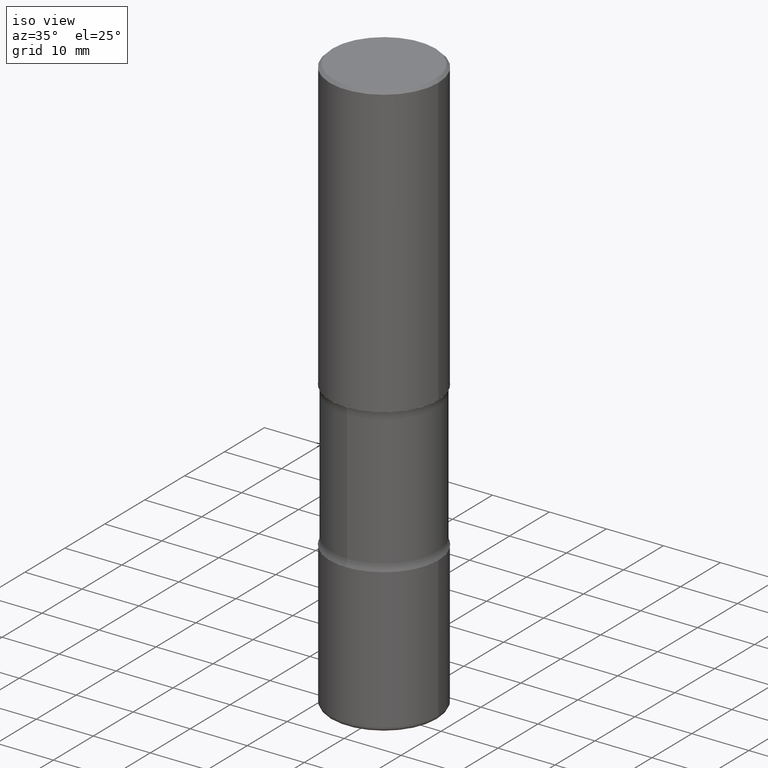
[diagram: clean part render]
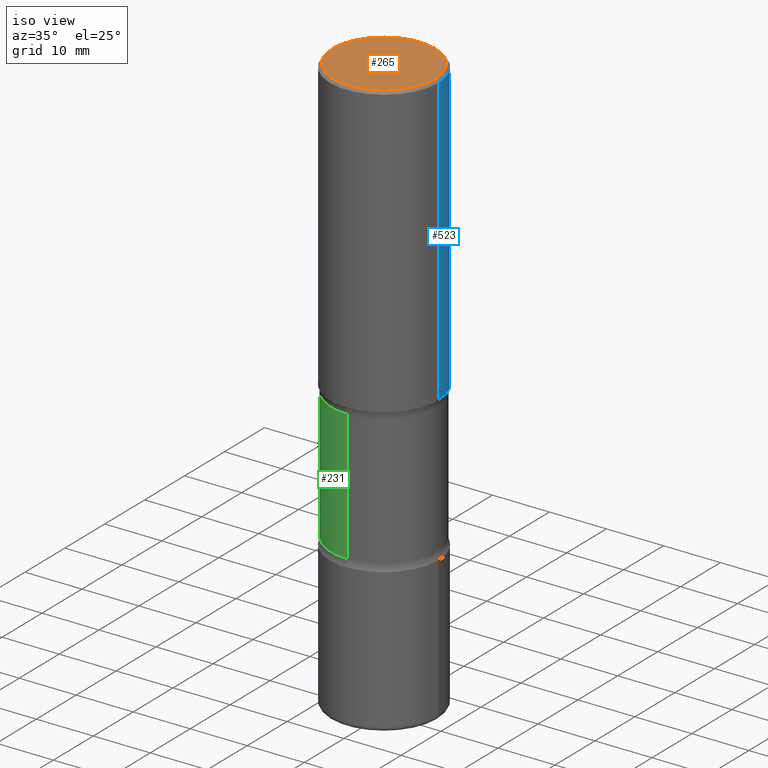
[diagram: same view with three faces highlighted in distinct colors, each labeled with its STEP entity id]
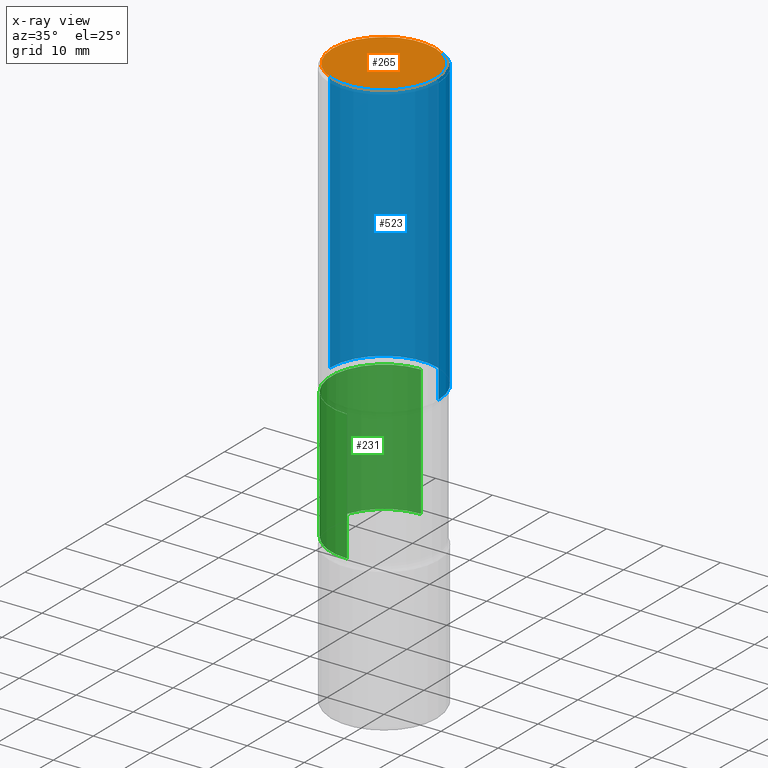
[diagram: x-ray of the same camera — body ghosted, the three highlighted faces saturated]
A machine part, iso view with three faces highlighted in distinct colors.
The next image is the same camera in x-ray (body ghosted, the three faces saturated) — at least one of them is partly hidden behind the body in this view.
Their STEP definitions:

[orange] entity #265 — the highlighted planar face has unit normal (0, -0, -1).
#23 = DIRECTION ( 'NONE',  ( 2.438088387897960049E-29, -3.491481338843145188E-15, -1.000000000000000000 ) ) ;
#26 = DIRECTION ( 'NONE',  ( 1.000000000000000000, -6.982962677686265922E-15, 4.876231632511976973E-29 ) ) ;
#27 = CIRCLE ( 'NONE', #90, 0.3550000000000008149 ) ;
#53 = CARTESIAN_POINT ( 'NONE',  ( -1.043851414335219820E-46, 1.490343170380447200E-32, 4.268512490100411279E-18 ) ) ;
#65 = AXIS2_PLACEMENT_3D ( 'NONE', #200, #23, #500 ) ;
#68 = CARTESIAN_POINT ( 'NONE',  ( -1.043851414335219820E-46, 1.490343170380447200E-32, 4.268512490100411279E-18 ) ) ;
#77 = FACE_OUTER_BOUND ( 'NONE', #559, .T. ) ;
#90 = AXIS2_PLACEMENT_3D ( 'NONE', #53, #440, #357 ) ;
#112 = ORIENTED_EDGE ( 'NONE', *, *, #165, .T. ) ;
#157 = PLANE ( 'NONE',  #65 ) ;
#165 = EDGE_CURVE ( 'NONE', #448, #234, #27, .T. ) ;
#180 = AXIS2_PLACEMENT_3D ( 'NONE', #68, #233, #26 ) ;
#200 = CARTESIAN_POINT ( 'NONE',  ( 2.478951750578629731E-15, 0.3550000000000008149, -1.237341619044269188E-15 ) ) ;
#233 = DIRECTION ( 'NONE',  ( -2.445468806185136597E-29, 3.491481338843145583E-15, 1.000000000000000000 ) ) ;
#234 = VERTEX_POINT ( 'NONE', #268 ) ;
#265 = ADVANCED_FACE ( 'NONE', ( #77 ), #157, .F. ) ;
#268 = CARTESIAN_POINT ( 'NONE',  ( 0.3550000000000008149, -2.538996582575045781E-15, 4.268512490117958041E-18 ) ) ;
#335 = CARTESIAN_POINT ( 'NONE',  ( -0.3550000000000008149, 2.513866563967061380E-15, 4.268512490082953109E-18 ) ) ;
#357 = DIRECTION ( 'NONE',  ( 1.000000000000000000, -6.982962677686265922E-15, 4.876231632511976973E-29 ) ) ;
#396 = EDGE_CURVE ( 'NONE', #234, #448, #420, .T. ) ;
#420 = CIRCLE ( 'NONE', #180, 0.3550000000000008149 ) ;
#440 = DIRECTION ( 'NONE',  ( -2.445468806185136597E-29, 3.491481338843145583E-15, 1.000000000000000000 ) ) ;
#448 = VERTEX_POINT ( 'NONE', #335 ) ;
#462 = ORIENTED_EDGE ( 'NONE', *, *, #396, .T. ) ;
#500 = DIRECTION ( 'NONE',  ( -1.000000000000000000, 6.982962677686265922E-15, -4.876176775795935793E-29 ) ) ;
#559 = EDGE_LOOP ( 'NONE', ( #112, #462 ) ) ;

[blue] entity #523 — the highlighted cylindrical surface (partial cylindrical patch) has radius 9.525 mm, axis along (-0, 0, 1).
#4 = CIRCLE ( 'NONE', #302, 0.3750000000000009437 ) ;
#13 = CARTESIAN_POINT ( 'NONE',  ( -0.3750000000000008327, 2.664535259100381613E-15, -1.844600658845593802E-29 ) ) ;
#33 = VERTEX_POINT ( 'NONE', #297 ) ;
#42 = EDGE_CURVE ( 'NONE', #33, #541, #473, .T. ) ;
#43 = ORIENTED_EDGE ( 'NONE', *, *, #42, .F. ) ;
#45 = VECTOR ( 'NONE', #300, 39.37007874015748143 ) ;
#67 = EDGE_LOOP ( 'NONE', ( #229, #72, #331, #43 ) ) ;
#72 = ORIENTED_EDGE ( 'NONE', *, *, #194, .T. ) ;
#79 = DIRECTION ( 'NONE',  ( 1.000000000000000000, -6.982962677686266711E-15, 4.876176775795935232E-29 ) ) ;
#88 = CARTESIAN_POINT ( 'NONE',  ( 0.3750000000000008327, -2.618611004132355933E-15, 1.828566290923479846E-29 ) ) ;
#110 = CARTESIAN_POINT ( 'NONE',  ( 4.890937612370273194E-29, -6.982962677686291165E-15, -2.000000000000000000 ) ) ;
#121 = VERTEX_POINT ( 'NONE', #139 ) ;
#138 = EDGE_CURVE ( 'NONE', #541, #454, #509, .T. ) ;
#139 = CARTESIAN_POINT ( 'NONE',  ( -0.3750000000000009437, -8.618608931311945336E-16, -2.000000000000000000 ) ) ;
#142 = DIRECTION ( 'NONE',  ( -2.445468806185136877E-29, 3.491481338843145188E-15, 1.000000000000000000 ) ) ;
#144 = DIRECTION ( 'NONE',  ( 1.000000000000000000, -6.982962677686266711E-15, 0.000000000000000000 ) ) ;
#194 = EDGE_CURVE ( 'NONE', #121, #454, #264, .T. ) ;
#229 = ORIENTED_EDGE ( 'NONE', *, *, #392, .T. ) ;
#257 = CARTESIAN_POINT ( 'NONE',  ( 0.3750000000000007772, -2.642516375941192367E-15, -0.02000000000000000042 ) ) ;
#264 = LINE ( 'NONE', #13, #427 ) ;
#278 = DIRECTION ( 'NONE',  ( -2.445468806185136597E-29, 3.491481338843145583E-15, 1.000000000000000000 ) ) ;
#297 = CARTESIAN_POINT ( 'NONE',  ( 0.3750000000000009437, -9.601573681818646704E-15, -2.000000000000000000 ) ) ;
#299 = FACE_OUTER_BOUND ( 'NONE', #67, .T. ) ;
#300 = DIRECTION ( 'NONE',  ( -2.445468806185136877E-29, 3.491481338843145188E-15, 1.000000000000000000 ) ) ;
#302 = AXIS2_PLACEMENT_3D ( 'NONE', #110, #278, #450 ) ;
#331 = ORIENTED_EDGE ( 'NONE', *, *, #138, .F. ) ;
#349 = CARTESIAN_POINT ( 'NONE',  ( 4.890937612370273159E-31, -6.982962677686291609E-17, -0.02000000000000000042 ) ) ;
#379 = DIRECTION ( 'NONE',  ( -2.445468806185136597E-29, 3.491481338843145583E-15, 1.000000000000000000 ) ) ;
#386 = CARTESIAN_POINT ( 'NONE',  ( -0.3750000000000007772, 2.548781377355492635E-15, -0.02000000000000000042 ) ) ;
#392 = EDGE_CURVE ( 'NONE', #33, #121, #4, .T. ) ;
#427 = VECTOR ( 'NONE', #142, 39.37007874015748143 ) ;
#445 = AXIS2_PLACEMENT_3D ( 'NONE', #349, #479, #144 ) ;
#450 = DIRECTION ( 'NONE',  ( 1.000000000000000000, -6.982962677686263555E-15, 0.000000000000000000 ) ) ;
#454 = VERTEX_POINT ( 'NONE', #386 ) ;
#473 = LINE ( 'NONE', #88, #45 ) ;
#477 = AXIS2_PLACEMENT_3D ( 'NONE', #508, #379, #79 ) ;
#479 = DIRECTION ( 'NONE',  ( -2.445468806185136597E-29, 3.491481338843145583E-15, 1.000000000000000000 ) ) ;
#508 = CARTESIAN_POINT ( 'NONE',  ( 0.000000000000000000, 0.000000000000000000, 0.000000000000000000 ) ) ;
#509 = CIRCLE ( 'NONE', #445, 0.3750000000000007772 ) ;
#523 = ADVANCED_FACE ( 'NONE', ( #299 ), #557, .T. ) ;
#541 = VERTEX_POINT ( 'NONE', #257 ) ;
#557 = CYLINDRICAL_SURFACE ( 'NONE', #477, 0.3750000000000008327 ) ;

[green] entity #231 — the highlighted cylindrical surface (partial cylindrical patch) has radius 9.271 mm, axis along (0, -0, -1).
#6 = EDGE_CURVE ( 'NONE', #410, #147, #288, .T. ) ;
#14 = DIRECTION ( 'NONE',  ( 6.982962677686265922E-15, 1.000000000000000000, -4.490709030680980363E-15 ) ) ;
#56 = CIRCLE ( 'NONE', #338, 0.3650000000000000466 ) ;
#61 = EDGE_CURVE ( 'NONE', #147, #82, #56, .T. ) ;
#82 = VERTEX_POINT ( 'NONE', #362 ) ;
#147 = VERTEX_POINT ( 'NONE', #225 ) ;
#149 = DIRECTION ( 'NONE',  ( 2.254915741824821778E-29, -3.764364172614001380E-15, -1.000000000000000000 ) ) ;
#154 = ORIENTED_EDGE ( 'NONE', *, *, #6, .F. ) ;
#168 = EDGE_CURVE ( 'NONE', #410, #277, #446, .T. ) ;
#186 = DIRECTION ( 'NONE',  ( 2.254915741824821778E-29, -3.764364172614001380E-15, -1.000000000000000000 ) ) ;
#188 = AXIS2_PLACEMENT_3D ( 'NONE', #226, #434, #388 ) ;
#199 = EDGE_LOOP ( 'NONE', ( #154, #407, #395, #243 ) ) ;
#218 = FACE_OUTER_BOUND ( 'NONE', #199, .T. ) ;
#225 = CARTESIAN_POINT ( 'NONE',  ( -2.538384259175396264E-15, -0.3650000000000103717, -2.951010205144333209 ) ) ;
#226 = CARTESIAN_POINT ( 'NONE',  ( 9.591322160380232129E-29, -1.423880818914343852E-14, -4.000000000000000000 ) ) ;
#227 = VECTOR ( 'NONE', #415, 39.37007874015748143 ) ;
#230 = CARTESIAN_POINT ( 'NONE',  ( 2.548781377355537205E-15, 0.3649999999999928302, -2.048989794855666791 ) ) ;
#231 = ADVANCED_FACE ( 'NONE', ( #218 ), #274, .T. ) ;
#243 = ORIENTED_EDGE ( 'NONE', *, *, #61, .F. ) ;
#247 = CARTESIAN_POINT ( 'NONE',  ( -2.504081769186512369E-15, -0.3650000000000141465, -3.999999999999998224 ) ) ;
#253 = AXIS2_PLACEMENT_3D ( 'NONE', #533, #186, #309 ) ;
#274 = CYLINDRICAL_SURFACE ( 'NONE', #188, 0.3649999999999999356 ) ;
#276 = VECTOR ( 'NONE', #402, 39.37007874015748143 ) ;
#277 = VERTEX_POINT ( 'NONE', #230 ) ;
#288 = LINE ( 'NONE', #247, #227 ) ;
#309 = DIRECTION ( 'NONE',  ( 6.982962677686265922E-15, 1.000000000000000000, -3.742257525567486660E-15 ) ) ;
#330 = LINE ( 'NONE', #461, #276 ) ;
#333 = CARTESIAN_POINT ( 'NONE',  ( -2.538384259175415591E-15, -0.3650000000000065969, -2.048989794855664126 ) ) ;
#338 = AXIS2_PLACEMENT_3D ( 'NONE', #475, #149, #14 ) ;
#342 = EDGE_CURVE ( 'NONE', #277, #82, #330, .T. ) ;
#362 = CARTESIAN_POINT ( 'NONE',  ( 2.548781377355560082E-15, 0.3649999999999897771, -2.951010205144336318 ) ) ;
#388 = DIRECTION ( 'NONE',  ( 6.982962677686265922E-15, 1.000000000000000000, -4.490709030680981152E-15 ) ) ;
#395 = ORIENTED_EDGE ( 'NONE', *, *, #342, .T. ) ;
#402 = DIRECTION ( 'NONE',  ( 2.254915741824821498E-29, -3.764364172614001380E-15, -1.000000000000000000 ) ) ;
#407 = ORIENTED_EDGE ( 'NONE', *, *, #168, .T. ) ;
#410 = VERTEX_POINT ( 'NONE', #333 ) ;
#415 = DIRECTION ( 'NONE',  ( 2.254915741824821498E-29, -3.764364172614001380E-15, -1.000000000000000000 ) ) ;
#434 = DIRECTION ( 'NONE',  ( 2.254915741824821778E-29, -3.764364172614001380E-15, -1.000000000000000000 ) ) ;
#446 = CIRCLE ( 'NONE', #253, 0.3649999999999997136 ) ;
#461 = CARTESIAN_POINT ( 'NONE',  ( 2.548781377355582959E-15, 0.3649999999999857248, -4.000000000000001776 ) ) ;
#475 = CARTESIAN_POINT ( 'NONE',  ( 7.225938558946600892E-29, -1.029002858795106075E-14, -2.951010205144334986 ) ) ;
#533 = CARTESIAN_POINT ( 'NONE',  ( 5.191958536339396350E-29, -6.894495272493812152E-15, -2.048989794855665458 ) ) ;